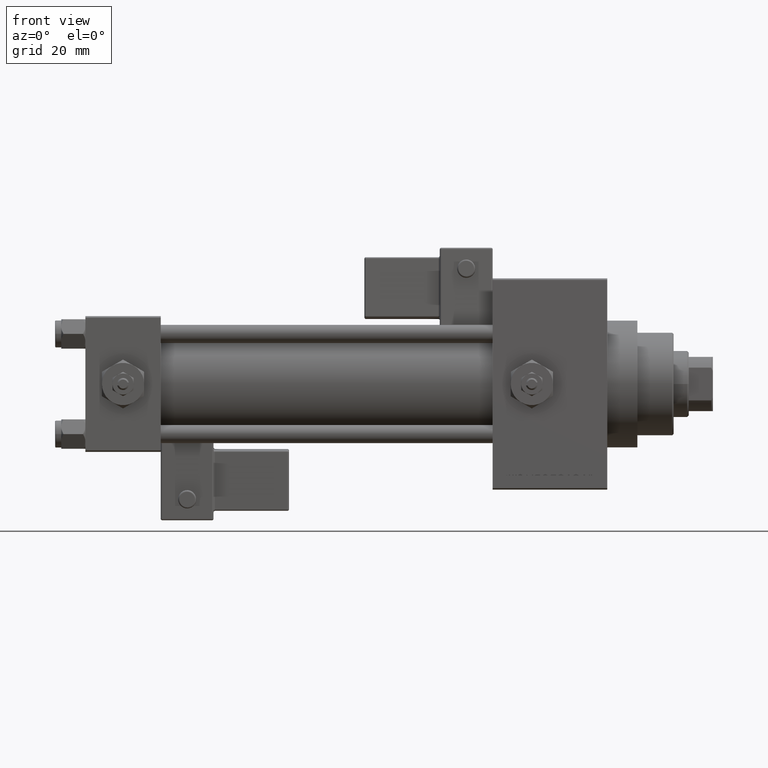
[diagram: clean part render]
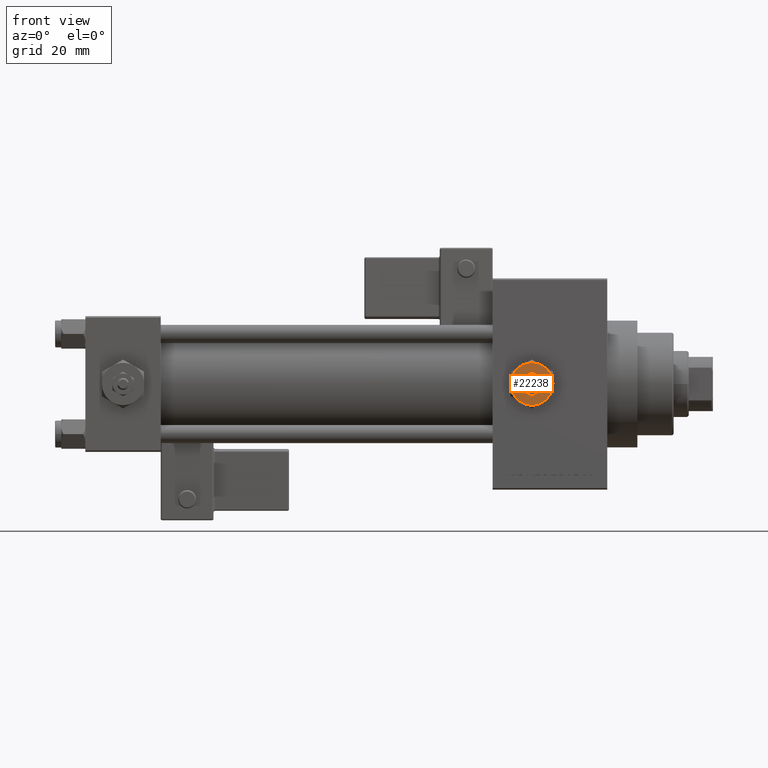
[diagram: same view with one face highlighted and labeled with its STEP entity id]
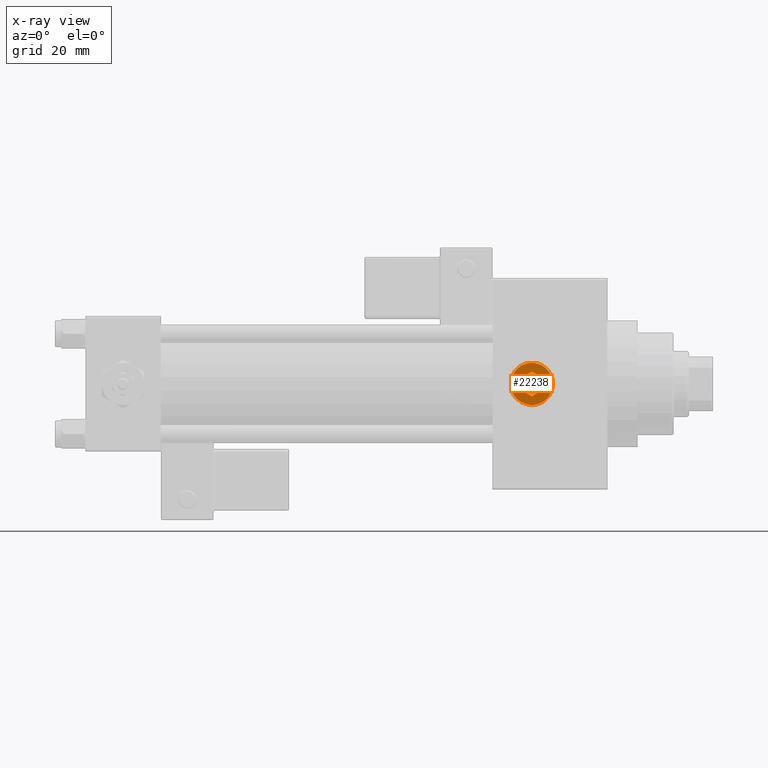
[diagram: x-ray of the same camera — body ghosted, the highlighted face saturated]
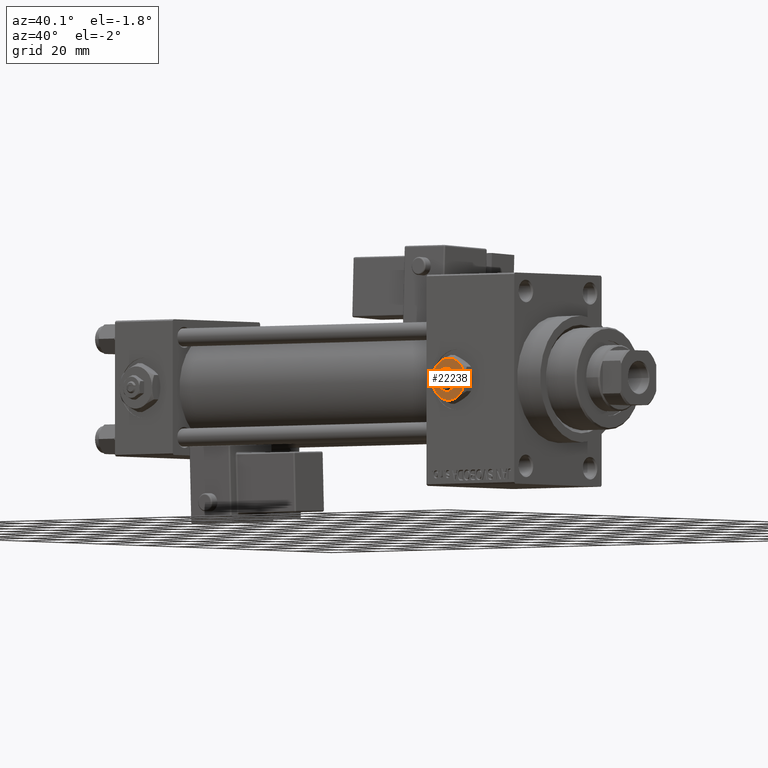
[diagram: same view with one face highlighted and labeled with its STEP entity id]
A machine part, front view. The second image highlights one B-rep face of the part: STEP entity #22238.
The next image is the same camera in x-ray: the body ghosted, the highlighted face saturated — about 0% of this face is hidden behind the body in this view.
A second angle (auxiliary view) of the same face is appended — the face is thin or edge-on in the first view.
In plain terms, the highlighted planar face has unit normal (0, -1, -0).
Its self-contained STEP definition (entity closure, byte-faithful):
#1197 = DIRECTION ( 'NONE',  ( -0.8660254037844387076, 0.4999999999999998335, 0.000000000000000000 ) ) ;
#1517 = ORIENTED_EDGE ( 'NONE', *, *, #42999, .T. ) ;
#1703 = EDGE_LOOP ( 'NONE', ( #22926, #40117, #30267, #7170, #2362, #11527 ) ) ;
#1862 = VECTOR ( 'NONE', #38122, 1000.000000000000114 ) ;
#2139 = ORIENTED_EDGE ( 'NONE', *, *, #6592, .T. ) ;
#2362 = ORIENTED_EDGE ( 'NONE', *, *, #25157, .F. ) ;
#2586 = VERTEX_POINT ( 'NONE', #29509 ) ;
#3685 = DIRECTION ( 'NONE',  ( 1.000000000000000000, 0.000000000000000000, 0.000000000000000000 ) ) ;
#3842 = CIRCLE ( 'NONE', #50335, 7.000000000000001776 ) ;
#3983 = ORIENTED_EDGE ( 'NONE', *, *, #28844, .T. ) ;
#4014 = CARTESIAN_POINT ( 'NONE',  ( -3.499999999999998668, -2.020725942163689837, 4.299999999999999822 ) ) ;
#4060 = DIRECTION ( 'NONE',  ( 1.000000000000000000, 0.000000000000000000, 0.000000000000000000 ) ) ;
#4497 = VERTEX_POINT ( 'NONE', #35539 ) ;
#4686 = CARTESIAN_POINT ( 'NONE',  ( 3.500000000000000444, 6.062177826491073063, 4.299999999999999822 ) ) ;
#4951 = EDGE_CURVE ( 'NONE', #31154, #22292, #33008, .T. ) ;
#5300 = ORIENTED_EDGE ( 'NONE', *, *, #15735, .T. ) ;
#5744 = EDGE_CURVE ( 'NONE', #2586, #8987, #8205, .T. ) ;
#6056 = VECTOR ( 'NONE', #45689, 1000.000000000000000 ) ;
#6592 = EDGE_CURVE ( 'NONE', #32023, #7446, #49680, .T. ) ;
#6690 = LINE ( 'NONE', #38626, #1862 ) ;
#6914 = CARTESIAN_POINT ( 'NONE',  ( 3.500000000000000888, -6.062177826491073951, 4.299999999999999822 ) ) ;
#7170 = ORIENTED_EDGE ( 'NONE', *, *, #20227, .F. ) ;
#7446 = VERTEX_POINT ( 'NONE', #9203 ) ;
#8152 = VECTOR ( 'NONE', #9427, 1000.000000000000000 ) ;
#8205 = LINE ( 'NONE', #11084, #28056 ) ;
#8512 = DIRECTION ( 'NONE',  ( 1.000000000000000000, 0.000000000000000000, 0.000000000000000000 ) ) ;
#8536 = VERTEX_POINT ( 'NONE', #6914 ) ;
#8654 = CARTESIAN_POINT ( 'NONE',  ( 3.499999999999998224, 2.020725942163691613, 4.299999999999999822 ) ) ;
#8987 = VERTEX_POINT ( 'NONE', #16356 ) ;
#9203 = CARTESIAN_POINT ( 'NONE',  ( -3.500000000000000000, -6.062177826491073063, 4.299999999999999822 ) ) ;
#9229 = CIRCLE ( 'NONE', #38270, 7.000000000000001776 ) ;
#9427 = DIRECTION ( 'NONE',  ( 1.073081856240828196E-16, -1.000000000000000000, 0.000000000000000000 ) ) ;
#10251 = VECTOR ( 'NONE', #1197, 1000.000000000000114 ) ;
#10616 = AXIS2_PLACEMENT_3D ( 'NONE', #17469, #25003, #21363 ) ;
#10692 = LINE ( 'NONE', #22886, #30519 ) ;
#11084 = CARTESIAN_POINT ( 'NONE',  ( 0.000000000000000000, 4.041451884327380562, 4.299999999999999822 ) ) ;
#11332 = PLANE ( 'NONE',  #15331 ) ;
#11475 = DIRECTION ( 'NONE',  ( 0.000000000000000000, 0.000000000000000000, 1.000000000000000000 ) ) ;
#11527 = ORIENTED_EDGE ( 'NONE', *, *, #46801, .F. ) ;
#12139 = DIRECTION ( 'NONE',  ( 0.000000000000000000, 0.000000000000000000, 1.000000000000000000 ) ) ;
#12635 = DIRECTION ( 'NONE',  ( 0.000000000000000000, 0.000000000000000000, 1.000000000000000000 ) ) ;
#13990 = LINE ( 'NONE', #29831, #6056 ) ;
#14224 = CIRCLE ( 'NONE', #41598, 7.000000000000001776 ) ;
#15331 = AXIS2_PLACEMENT_3D ( 'NONE', #22525, #46434, #50841 ) ;
#15387 = CARTESIAN_POINT ( 'NONE',  ( 0.000000000000000000, 0.000000000000000000, 4.299999999999999822 ) ) ;
#15735 = EDGE_CURVE ( 'NONE', #29028, #31154, #19939, .T. ) ;
#15764 = ORIENTED_EDGE ( 'NONE', *, *, #4951, .T. ) ;
#15789 = AXIS2_PLACEMENT_3D ( 'NONE', #15387, #11475, #3685 ) ;
#16356 = CARTESIAN_POINT ( 'NONE',  ( -3.499999999999999112, 2.020725942163690725, 4.299999999999999822 ) ) ;
#16785 = CARTESIAN_POINT ( 'NONE',  ( 0.000000000000000000, 0.000000000000000000, 4.299999999999999822 ) ) ;
#17469 = CARTESIAN_POINT ( 'NONE',  ( 0.000000000000000000, 0.000000000000000000, 4.299999999999999822 ) ) ;
#18033 = EDGE_CURVE ( 'NONE', #8536, #29028, #9229, .T. ) ;
#18218 = EDGE_LOOP ( 'NONE', ( #22520, #5300, #15764, #1517, #2139, #3983 ) ) ;
#19939 = CIRCLE ( 'NONE', #15789, 7.000000000000001776 ) ;
#20227 = EDGE_CURVE ( 'NONE', #4497, #44884, #6690, .T. ) ;
#21066 = CARTESIAN_POINT ( 'NONE',  ( -7.000000000000001776, -2.253471898105739040E-15, 4.299999999999999822 ) ) ;
#21120 = EDGE_CURVE ( 'NONE', #44884, #48266, #13990, .T. ) ;
#21363 = DIRECTION ( 'NONE',  ( 1.000000000000000000, 0.000000000000000000, 0.000000000000000000 ) ) ;
#22238 = ADVANCED_FACE ( 'NONE', ( #46943, #42531 ), #11332, .T. ) ;
#22292 = VERTEX_POINT ( 'NONE', #35231 ) ;
#22520 = ORIENTED_EDGE ( 'NONE', *, *, #18033, .T. ) ;
#22525 = CARTESIAN_POINT ( 'NONE',  ( 0.000000000000000000, 0.000000000000000000, 4.299999999999999822 ) ) ;
#22886 = CARTESIAN_POINT ( 'NONE',  ( -3.499999999999998668, -2.020725942163689837, 4.299999999999999822 ) ) ;
#22926 = ORIENTED_EDGE ( 'NONE', *, *, #5744, .F. ) ;
#25003 = DIRECTION ( 'NONE',  ( 0.000000000000000000, 0.000000000000000000, 1.000000000000000000 ) ) ;
#25157 = EDGE_CURVE ( 'NONE', #29666, #4497, #10692, .T. ) ;
#28056 = VECTOR ( 'NONE', #42771, 1000.000000000000227 ) ;
#28844 = EDGE_CURVE ( 'NONE', #7446, #8536, #14224, .T. ) ;
#29028 = VERTEX_POINT ( 'NONE', #40505 ) ;
#29042 = CARTESIAN_POINT ( 'NONE',  ( 0.000000000000000000, 0.000000000000000000, 4.299999999999999822 ) ) ;
#29168 = LINE ( 'NONE', #45015, #8152 ) ;
#29460 = DIRECTION ( 'NONE',  ( 0.000000000000000000, 0.000000000000000000, 1.000000000000000000 ) ) ;
#29509 = CARTESIAN_POINT ( 'NONE',  ( 0.000000000000000000, 4.041451884327380562, 4.299999999999999822 ) ) ;
#29565 = DIRECTION ( 'NONE',  ( 1.000000000000000000, 0.000000000000000000, 0.000000000000000000 ) ) ;
#29666 = VERTEX_POINT ( 'NONE', #4014 ) ;
#29831 = CARTESIAN_POINT ( 'NONE',  ( 3.499999999999999556, -2.020725942163690281, 4.299999999999999822 ) ) ;
#30267 = ORIENTED_EDGE ( 'NONE', *, *, #21120, .F. ) ;
#30519 = VECTOR ( 'NONE', #38725, 1000.000000000000227 ) ;
#31154 = VERTEX_POINT ( 'NONE', #4686 ) ;
#32023 = VERTEX_POINT ( 'NONE', #21066 ) ;
#32774 = EDGE_CURVE ( 'NONE', #48266, #2586, #33407, .T. ) ;
#33008 = CIRCLE ( 'NONE', #10616, 7.000000000000001776 ) ;
#33407 = LINE ( 'NONE', #49273, #10251 ) ;
#35231 = CARTESIAN_POINT ( 'NONE',  ( -3.500000000000000888, 6.062177826491073063, 4.299999999999999822 ) ) ;
#35539 = CARTESIAN_POINT ( 'NONE',  ( -2.443687887572056883E-16, -4.041451884327378785, 4.299999999999999822 ) ) ;
#38122 = DIRECTION ( 'NONE',  ( 0.8660254037844388186, 0.4999999999999996669, 0.000000000000000000 ) ) ;
#38270 = AXIS2_PLACEMENT_3D ( 'NONE', #44098, #12139, #8512 ) ;
#38626 = CARTESIAN_POINT ( 'NONE',  ( -2.443687887572056883E-16, -4.041451884327378785, 4.299999999999999822 ) ) ;
#38659 = CARTESIAN_POINT ( 'NONE',  ( 3.500000000000000000, -2.020725942163690281, 4.299999999999999822 ) ) ;
#38725 = DIRECTION ( 'NONE',  ( 0.8660254037844385966, -0.4999999999999998890, 0.000000000000000000 ) ) ;
#40117 = ORIENTED_EDGE ( 'NONE', *, *, #32774, .F. ) ;
#40505 = CARTESIAN_POINT ( 'NONE',  ( 6.999999999999994671, 3.004629197474313724E-15, 4.299999999999999822 ) ) ;
#41406 = AXIS2_PLACEMENT_3D ( 'NONE', #29042, #44636, #29565 ) ;
#41411 = DIRECTION ( 'NONE',  ( 1.000000000000000000, 0.000000000000000000, 0.000000000000000000 ) ) ;
#41598 = AXIS2_PLACEMENT_3D ( 'NONE', #48439, #29460, #41411 ) ;
#42531 = FACE_BOUND ( 'NONE', #1703, .T. ) ;
#42771 = DIRECTION ( 'NONE',  ( -0.8660254037844385966, -0.4999999999999998890, 0.000000000000000000 ) ) ;
#42999 = EDGE_CURVE ( 'NONE', #22292, #32023, #3842, .T. ) ;
#44098 = CARTESIAN_POINT ( 'NONE',  ( 0.000000000000000000, 0.000000000000000000, 4.299999999999999822 ) ) ;
#44636 = DIRECTION ( 'NONE',  ( 0.000000000000000000, 0.000000000000000000, 1.000000000000000000 ) ) ;
#44884 = VERTEX_POINT ( 'NONE', #38659 ) ;
#45015 = CARTESIAN_POINT ( 'NONE',  ( -3.499999999999999112, 2.020725942163690725, 4.299999999999999822 ) ) ;
#45689 = DIRECTION ( 'NONE',  ( -3.219245568722483357E-16, 1.000000000000000000, 0.000000000000000000 ) ) ;
#46434 = DIRECTION ( 'NONE',  ( 0.000000000000000000, 0.000000000000000000, 1.000000000000000000 ) ) ;
#46801 = EDGE_CURVE ( 'NONE', #8987, #29666, #29168, .T. ) ;
#46943 = FACE_OUTER_BOUND ( 'NONE', #18218, .T. ) ;
#48266 = VERTEX_POINT ( 'NONE', #8654 ) ;
#48439 = CARTESIAN_POINT ( 'NONE',  ( 0.000000000000000000, 0.000000000000000000, 4.299999999999999822 ) ) ;
#49273 = CARTESIAN_POINT ( 'NONE',  ( 3.499999999999998224, 2.020725942163691613, 4.299999999999999822 ) ) ;
#49680 = CIRCLE ( 'NONE', #41406, 7.000000000000001776 ) ;
#50335 = AXIS2_PLACEMENT_3D ( 'NONE', #16785, #12635, #4060 ) ;
#50841 = DIRECTION ( 'NONE',  ( 1.000000000000000000, 0.000000000000000000, -0.000000000000000000 ) ) ;